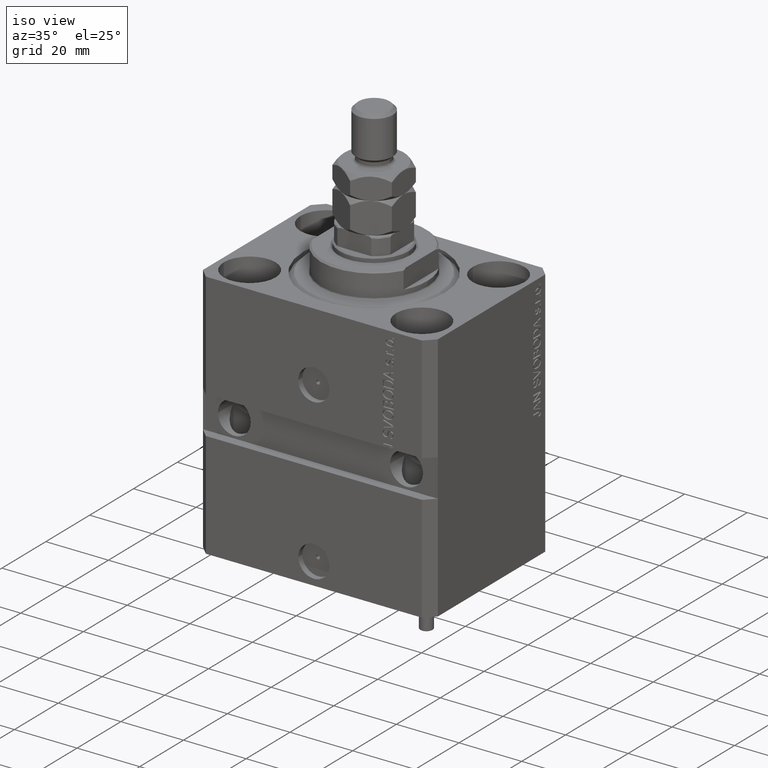
[diagram: clean part render]
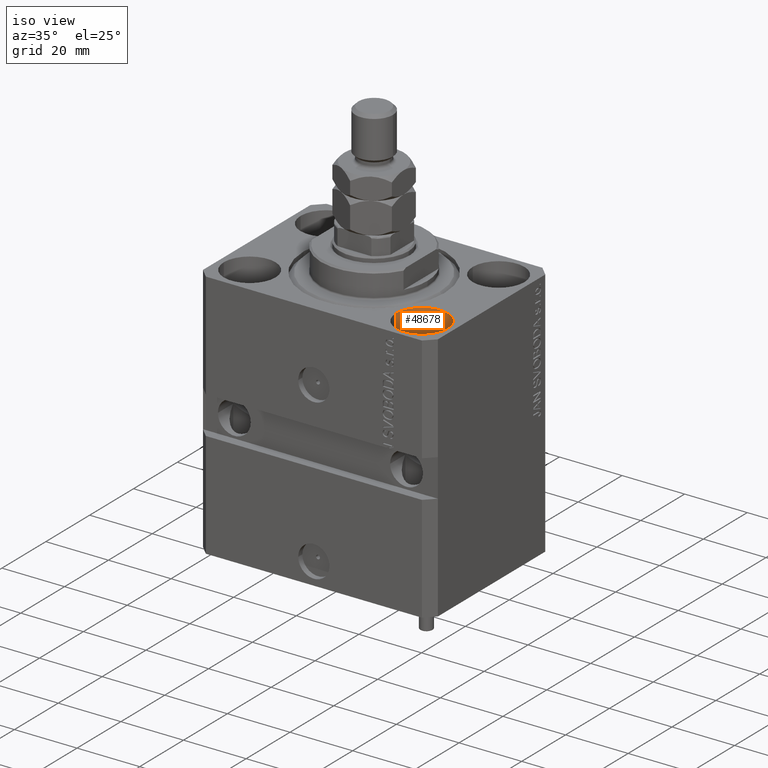
[diagram: same view with one face highlighted and labeled with its STEP entity id]
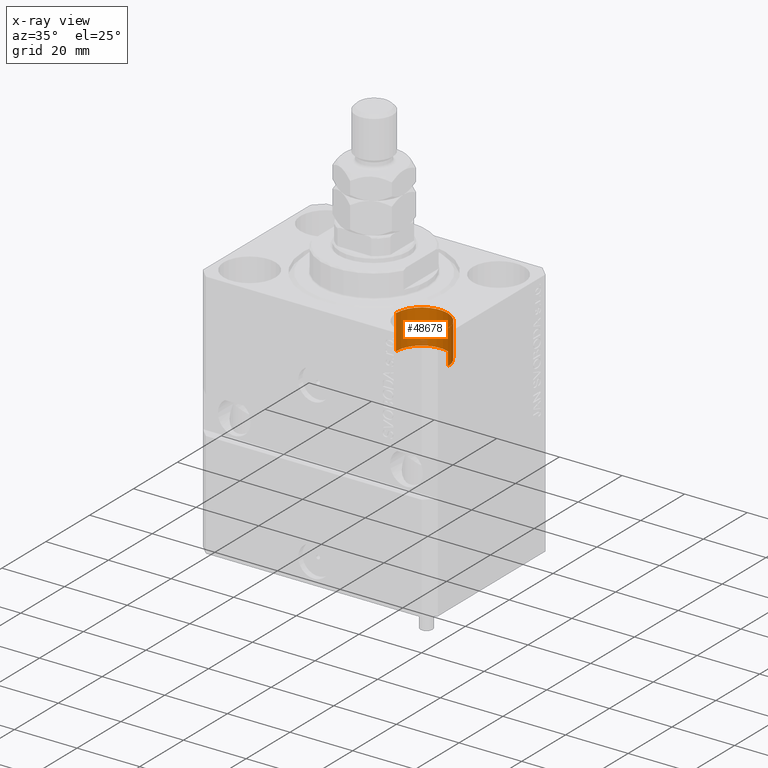
[diagram: x-ray of the same camera — body ghosted, the highlighted face saturated]
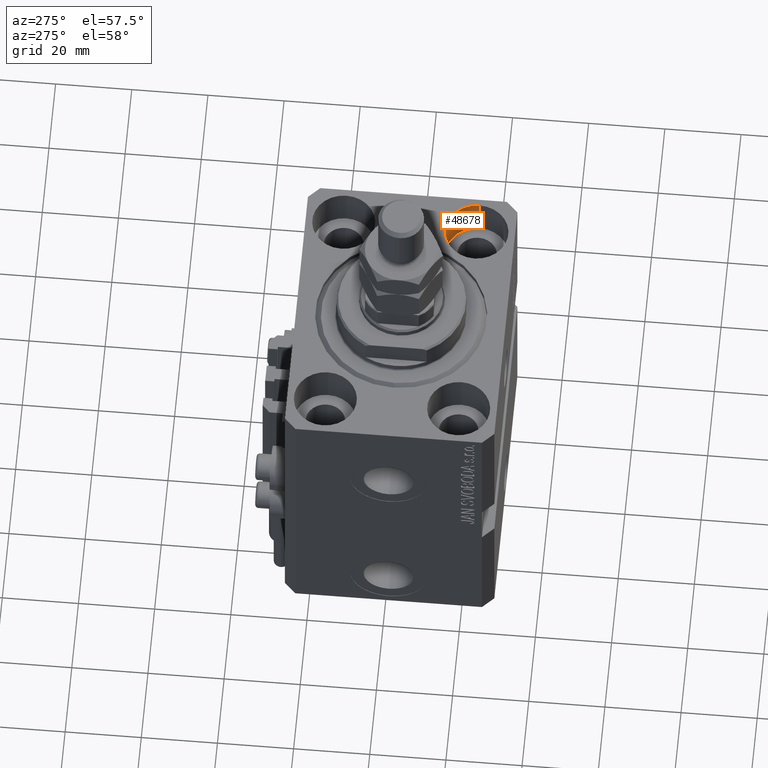
[diagram: same view with one face highlighted and labeled with its STEP entity id]
A machine part, iso view. The second image highlights one B-rep face of the part: STEP entity #48678.
The next image is the same camera in x-ray: the body ghosted, the highlighted face saturated — about 2% of this face is hidden behind the body in this view.
A second angle (auxiliary view) of the same face is appended — the face is thin or edge-on in the first view.
In plain terms, the highlighted cylindrical surface (edge-blend (fillet) strip) has radius 8.25 mm, axis along (0, 0, 1).
Its self-contained STEP definition (entity closure, byte-faithful):
#1200 = VECTOR ( 'NONE', #46584, 1000.000000000000000 ) ;
#3728 = ORIENTED_EDGE ( 'NONE', *, *, #9863, .F. ) ;
#5293 = CARTESIAN_POINT ( 'NONE',  ( 19.25000000000000000, -17.50000000000000000, -11.00000000000000000 ) ) ;
#8055 = EDGE_CURVE ( 'NONE', #8576, #26918, #37842, .T. ) ;
#8576 = VERTEX_POINT ( 'NONE', #9343 ) ;
#9343 = CARTESIAN_POINT ( 'NONE',  ( 35.75000000000000711, -17.50000000000000000, 0.000000000000000000 ) ) ;
#9863 = EDGE_CURVE ( 'NONE', #20746, #38433, #25984, .T. ) ;
#11573 = CYLINDRICAL_SURFACE ( 'NONE', #35945, 8.250000000000000000 ) ;
#11812 = CARTESIAN_POINT ( 'NONE',  ( 19.25000000000000000, -17.50000000000000000, -11.00000000000000000 ) ) ;
#12268 = CARTESIAN_POINT ( 'NONE',  ( 35.75000000000000711, -17.50000000000000000, -11.00000000000000000 ) ) ;
#12529 = LINE ( 'NONE', #5293, #1200 ) ;
#13779 = ORIENTED_EDGE ( 'NONE', *, *, #8055, .T. ) ;
#14060 = AXIS2_PLACEMENT_3D ( 'NONE', #19565, #24028, #16088 ) ;
#15907 = EDGE_LOOP ( 'NONE', ( #44837, #3728, #26183, #13779 ) ) ;
#16088 = DIRECTION ( 'NONE',  ( 1.000000000000000000, 0.000000000000000000, 0.000000000000000000 ) ) ;
#16302 = DIRECTION ( 'NONE',  ( -0.000000000000000000, -0.000000000000000000, 1.000000000000000000 ) ) ;
#19537 = FACE_OUTER_BOUND ( 'NONE', #15907, .T. ) ;
#19565 = CARTESIAN_POINT ( 'NONE',  ( 27.50000000000000355, -17.50000000000000000, -11.00000000000000000 ) ) ;
#19787 = DIRECTION ( 'NONE',  ( 1.000000000000000000, 0.000000000000000000, 0.000000000000000000 ) ) ;
#20746 = VERTEX_POINT ( 'NONE', #12268 ) ;
#23501 = CARTESIAN_POINT ( 'NONE',  ( 27.50000000000000355, -17.50000000000000000, -11.00000000000000000 ) ) ;
#23540 = AXIS2_PLACEMENT_3D ( 'NONE', #36737, #24813, #36008 ) ;
#24028 = DIRECTION ( 'NONE',  ( 0.000000000000000000, 0.000000000000000000, 1.000000000000000000 ) ) ;
#24813 = DIRECTION ( 'NONE',  ( 0.000000000000000000, 0.000000000000000000, 1.000000000000000000 ) ) ;
#25325 = CARTESIAN_POINT ( 'NONE',  ( 35.75000000000000711, -17.50000000000000000, -11.00000000000000000 ) ) ;
#25984 = CIRCLE ( 'NONE', #14060, 8.250000000000000000 ) ;
#26183 = ORIENTED_EDGE ( 'NONE', *, *, #31710, .T. ) ;
#26918 = VERTEX_POINT ( 'NONE', #27506 ) ;
#27506 = CARTESIAN_POINT ( 'NONE',  ( 19.25000000000000000, -17.50000000000000000, 0.000000000000000000 ) ) ;
#28054 = EDGE_CURVE ( 'NONE', #38433, #26918, #12529, .T. ) ;
#31710 = EDGE_CURVE ( 'NONE', #20746, #8576, #33293, .T. ) ;
#33293 = LINE ( 'NONE', #25325, #39436 ) ;
#35945 = AXIS2_PLACEMENT_3D ( 'NONE', #23501, #16302, #19787 ) ;
#36008 = DIRECTION ( 'NONE',  ( 1.000000000000000000, 0.000000000000000000, 0.000000000000000000 ) ) ;
#36737 = CARTESIAN_POINT ( 'NONE',  ( 27.50000000000000355, -17.50000000000000000, 0.000000000000000000 ) ) ;
#37842 = CIRCLE ( 'NONE', #23540, 8.250000000000000000 ) ;
#38433 = VERTEX_POINT ( 'NONE', #11812 ) ;
#39436 = VECTOR ( 'NONE', #48430, 1000.000000000000000 ) ;
#44837 = ORIENTED_EDGE ( 'NONE', *, *, #28054, .F. ) ;
#46584 = DIRECTION ( 'NONE',  ( -0.000000000000000000, -0.000000000000000000, 1.000000000000000000 ) ) ;
#48430 = DIRECTION ( 'NONE',  ( -0.000000000000000000, -0.000000000000000000, 1.000000000000000000 ) ) ;
#48678 = ADVANCED_FACE ( 'NONE', ( #19537 ), #11573, .F. ) ;